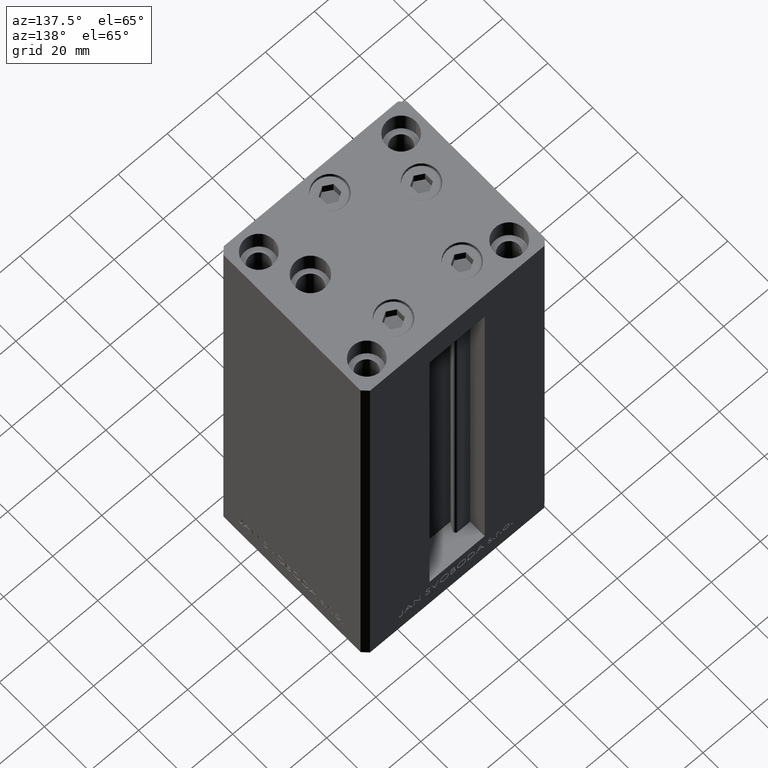
[diagram: clean part render]
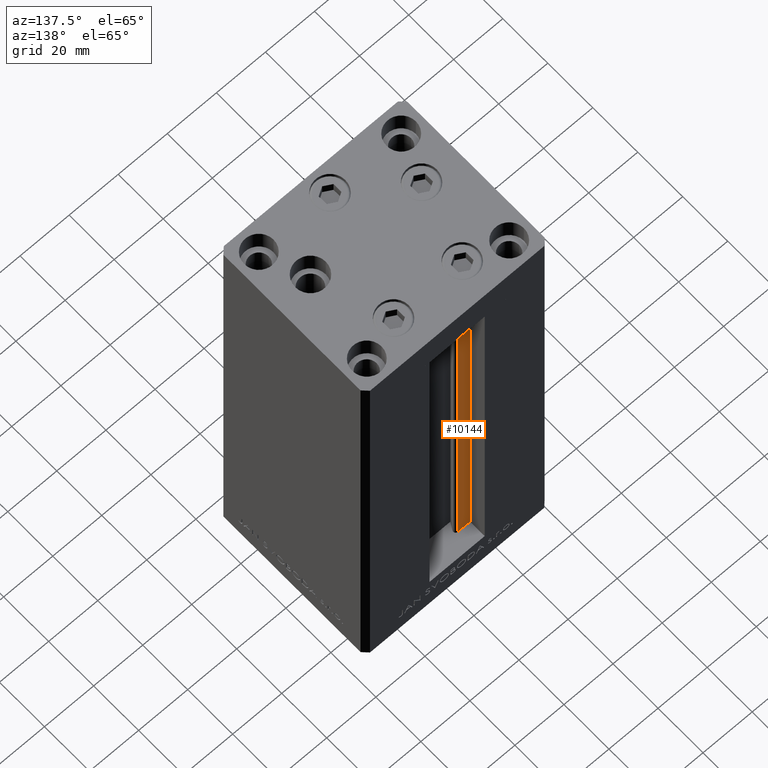
[diagram: same view with one face highlighted and labeled with its STEP entity id]
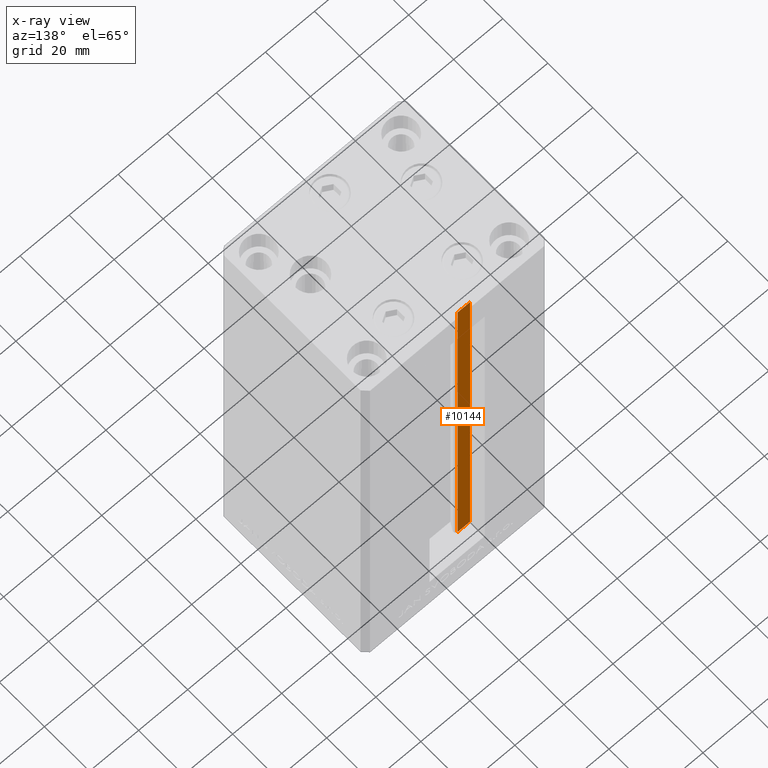
[diagram: x-ray of the same camera — body ghosted, the highlighted face saturated]
A machine part, auxiliary view. The second image highlights one B-rep face of the part: STEP entity #10144.
The next image is the same camera in x-ray: the body ghosted, the highlighted face saturated — about 0% of this face is hidden behind the body in this view.
In plain terms, the highlighted planar face has unit normal (0, -1, 0).
Its self-contained STEP definition (entity closure, byte-faithful):
#1799 = DIRECTION ( 'NONE',  ( -0.000000000000000000, -0.000000000000000000, 1.000000000000000000 ) ) ;
#2638 = ORIENTED_EDGE ( 'NONE', *, *, #19652, .F. ) ;
#2782 = EDGE_CURVE ( 'NONE', #11377, #28934, #20323, .T. ) ;
#4016 = LINE ( 'NONE', #32177, #30435 ) ;
#4917 = AXIS2_PLACEMENT_3D ( 'NONE', #12372, #38352, #4951 ) ;
#4951 = DIRECTION ( 'NONE',  ( 0.000000000000000000, 0.000000000000000000, -1.000000000000000000 ) ) ;
#9143 = VECTOR ( 'NONE', #27197, 1000.000000000000000 ) ;
#9502 = ORIENTED_EDGE ( 'NONE', *, *, #2782, .T. ) ;
#10144 = ADVANCED_FACE ( 'NONE', ( #16074 ), #23728, .F. ) ;
#11377 = VERTEX_POINT ( 'NONE', #11886 ) ;
#11686 = LINE ( 'NONE', #15151, #28025 ) ;
#11886 = CARTESIAN_POINT ( 'NONE',  ( -11.25000000000000178, 25.99999999999999289, 0.000000000000000000 ) ) ;
#12372 = CARTESIAN_POINT ( 'NONE',  ( -6.183333333334001480, 25.99999999999999289, 0.000000000000000000 ) ) ;
#15151 = CARTESIAN_POINT ( 'NONE',  ( -6.183333333334001480, 25.99999999999999289, 0.000000000000000000 ) ) ;
#15399 = CARTESIAN_POINT ( 'NONE',  ( -6.183333333334001480, 25.99999999999999289, 0.000000000000000000 ) ) ;
#16074 = FACE_OUTER_BOUND ( 'NONE', #33863, .T. ) ;
#16597 = DIRECTION ( 'NONE',  ( -1.000000000000000000, 0.000000000000000000, 0.000000000000000000 ) ) ;
#17031 = ORIENTED_EDGE ( 'NONE', *, *, #22515, .F. ) ;
#19652 = EDGE_CURVE ( 'NONE', #36293, #35550, #11686, .T. ) ;
#20323 = LINE ( 'NONE', #20568, #29199 ) ;
#20568 = CARTESIAN_POINT ( 'NONE',  ( -11.25000000000000178, 25.99999999999999289, 0.000000000000000000 ) ) ;
#21804 = CARTESIAN_POINT ( 'NONE',  ( -6.183333333334001480, 25.99999999999999289, 156.0000000000000000 ) ) ;
#22515 = EDGE_CURVE ( 'NONE', #11377, #36293, #45288, .T. ) ;
#23728 = PLANE ( 'NONE',  #4917 ) ;
#24682 = EDGE_CURVE ( 'NONE', #35550, #28934, #4016, .T. ) ;
#26705 = CARTESIAN_POINT ( 'NONE',  ( -6.183333333334001480, 25.99999999999999289, 0.000000000000000000 ) ) ;
#27197 = DIRECTION ( 'NONE',  ( 1.000000000000000000, -0.000000000000000000, -0.000000000000000000 ) ) ;
#28025 = VECTOR ( 'NONE', #44852, 1000.000000000000000 ) ;
#28934 = VERTEX_POINT ( 'NONE', #38011 ) ;
#29199 = VECTOR ( 'NONE', #1799, 1000.000000000000000 ) ;
#30435 = VECTOR ( 'NONE', #16597, 1000.000000000000000 ) ;
#32177 = CARTESIAN_POINT ( 'NONE',  ( 0.000000000000000000, 25.99999999999999289, 156.0000000000000000 ) ) ;
#33863 = EDGE_LOOP ( 'NONE', ( #2638, #17031, #9502, #35439 ) ) ;
#35439 = ORIENTED_EDGE ( 'NONE', *, *, #24682, .F. ) ;
#35550 = VERTEX_POINT ( 'NONE', #21804 ) ;
#36293 = VERTEX_POINT ( 'NONE', #15399 ) ;
#38011 = CARTESIAN_POINT ( 'NONE',  ( -11.25000000000000178, 25.99999999999999289, 156.0000000000000000 ) ) ;
#38352 = DIRECTION ( 'NONE',  ( 0.000000000000000000, -1.000000000000000000, -0.000000000000000000 ) ) ;
#44852 = DIRECTION ( 'NONE',  ( -0.000000000000000000, -0.000000000000000000, 1.000000000000000000 ) ) ;
#45288 = LINE ( 'NONE', #26705, #9143 ) ;